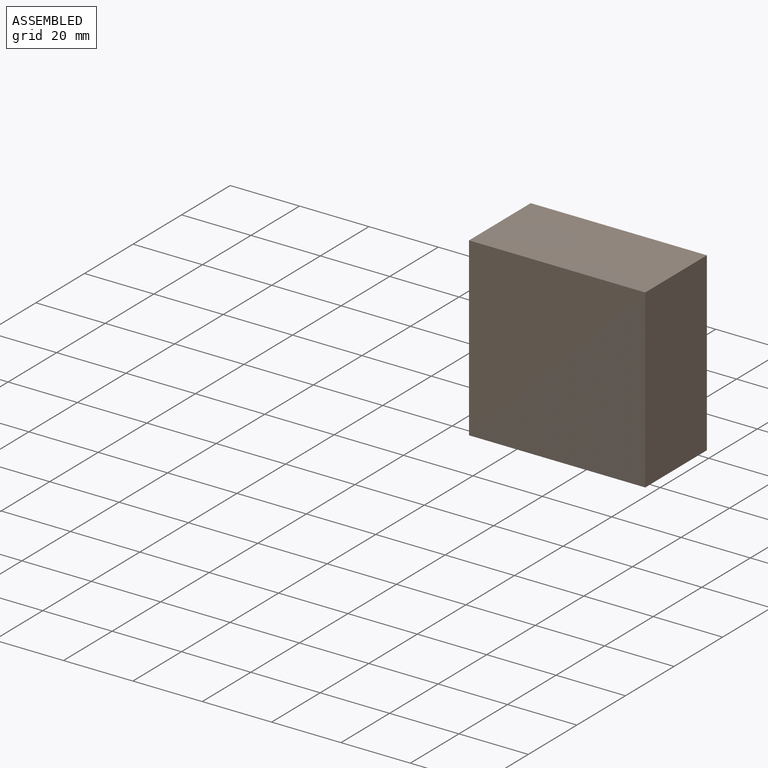
[diagram: assembled view]
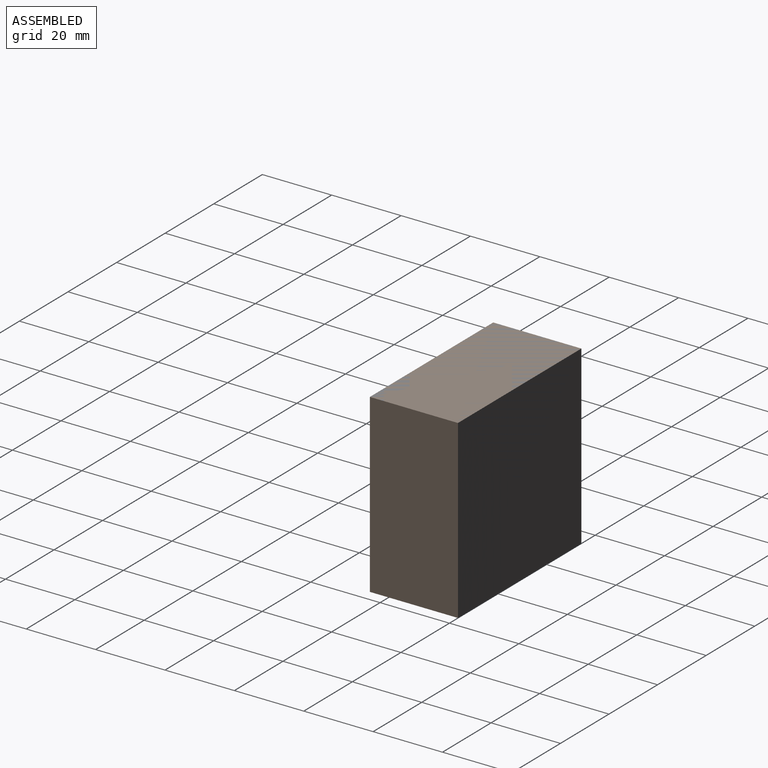
[diagram: assembled view, second angle]
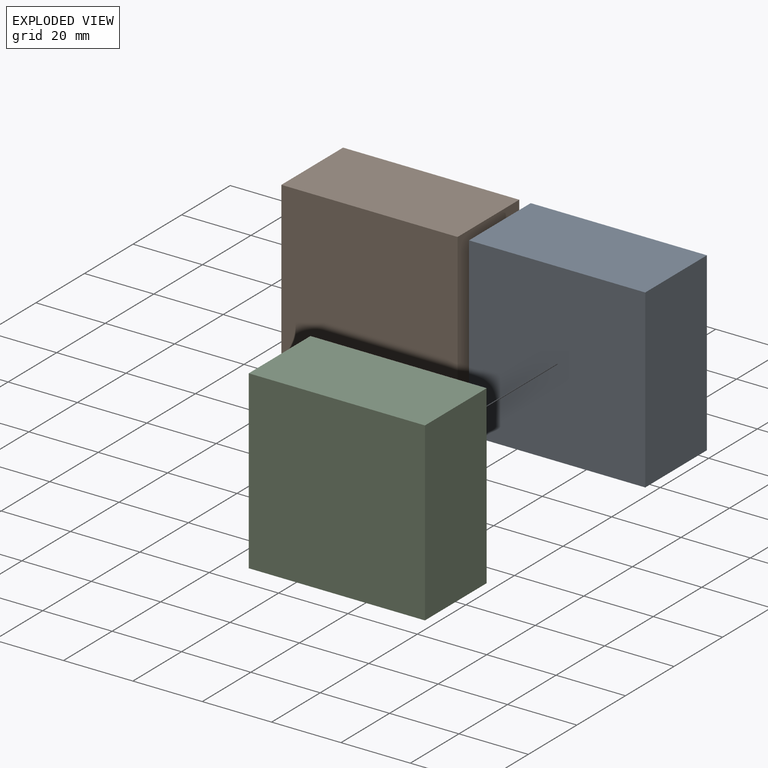
[diagram: exploded view]
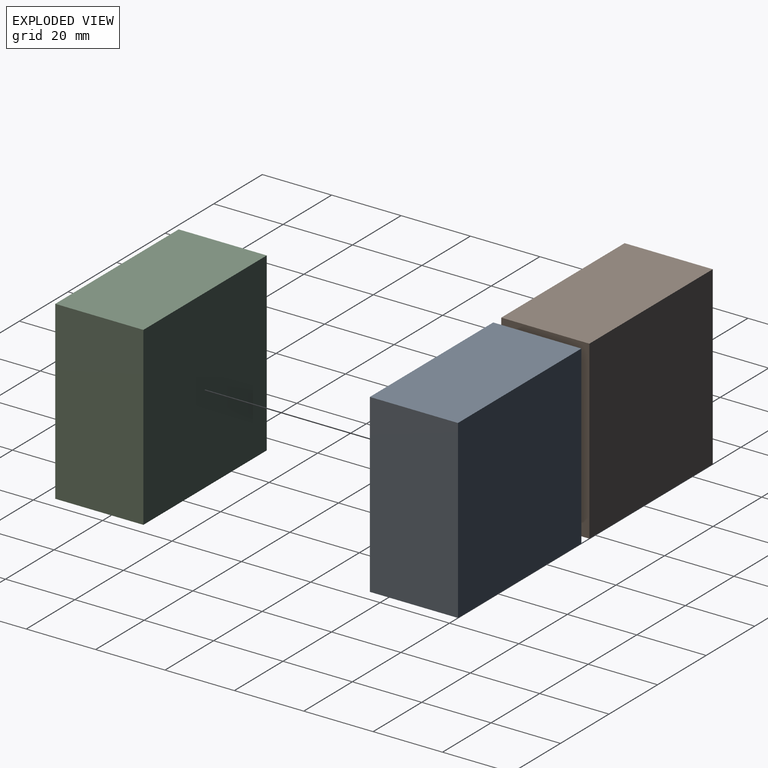
[diagram: exploded view, second angle]
ASSEMBLY  parts=3 mates=2
PART A: 6 faces, bbox 50.8x25.4x50.8 mm
  f0: plane 50.8x25.4mm, normal (-1,0,0), area 1290.3mm2, adj f1,f3,f4,f5
  f1: plane 50.8x25.4mm, normal (0,0,-1), area 1290.3mm2, adj f0,f2,f4,f5
  f2: plane 50.8x25.4mm, normal (1,0,0), area 1290.3mm2, adj f1,f3,f4,f5
  f3: plane 50.8x25.4mm, normal (0,0,1), area 1290.3mm2, adj f0,f2,f4,f5
  f4: plane 50.8x50.8mm, normal (0,-1,0), area 2580.6mm2, adj f0,f1,f2,f3
  f5: plane 50.8x50.8mm, normal (0,1,0), area 2580.6mm2, adj f0,f1,f2,f3
PART B: same geometry as A
PART C: same geometry as A
PLACE A rot(axis=(0,-1,0),90deg) t=(38.49,41.4,6.67)mm
PLACE B t=(-12.31,41.4,6.67)mm
PLACE C t=(-12.31,41.4,6.67)mm
MATE parallel C.f4 <-> A.f4  axis (0,-1,0) through (13.09,16,32.07)mm
MATE parallel B.f2 <-> A.f1  axis (1,0,0) through (38.49,28.7,32.07)mm
